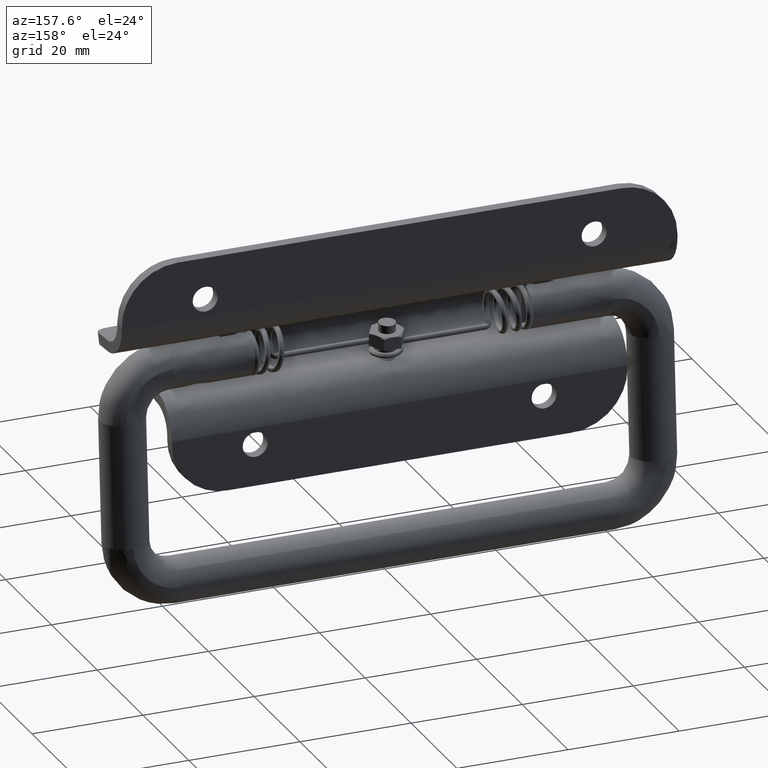
[diagram: clean part render]
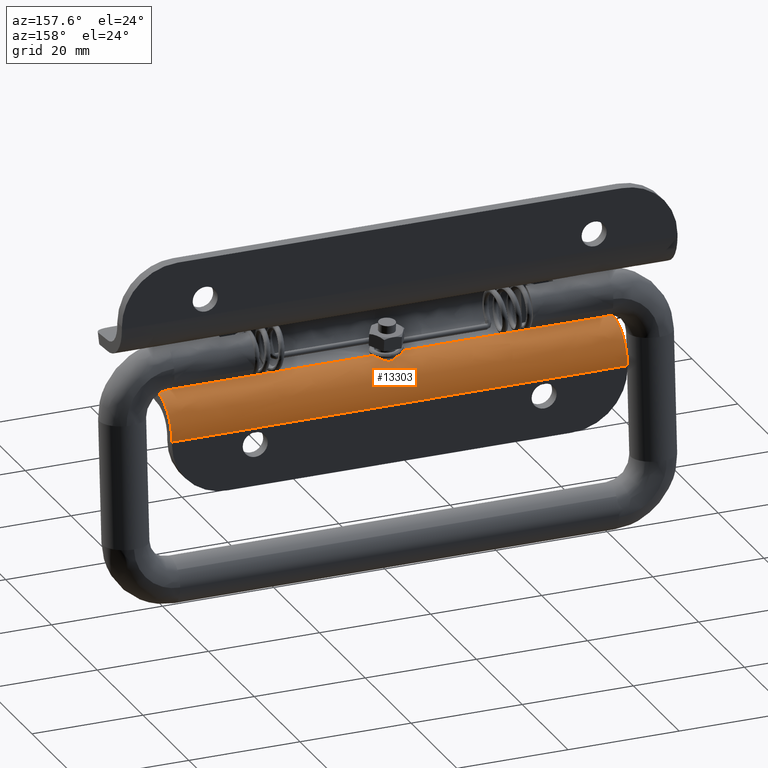
[diagram: same view with one face highlighted and labeled with its STEP entity id]
A machine part, auxiliary view. The second image highlights one B-rep face of the part: STEP entity #13303.
In plain terms, the highlighted face is a freeform B-spline surface patch.
Its self-contained STEP definition (entity closure, byte-faithful):
#10164=CARTESIAN_POINT('',(1.420745714925294,1.330434104165202,-4.637614826617690));
#10165=VERTEX_POINT('',#10164);
#10173=CARTESIAN_POINT('',(-1.420745714925612,1.330434104164650,-4.637614826617650));
#10174=VERTEX_POINT('',#10173);
#10175=CARTESIAN_POINT('',(1.420745714925294,1.330434104165202,-4.637614826617690));
#10176=CARTESIAN_POINT('',(1.357423318160945,1.470295152488968,-4.666861076799645));
#10177=CARTESIAN_POINT('',(1.279486514065444,1.599513922277910,-4.698675243545999));
#10178=CARTESIAN_POINT('',(1.163089380218020,1.747841606161606,-4.739329438918965));
#10179=CARTESIAN_POINT('',(1.138844076233839,1.776836142881588,-4.747502806719724));
#10180=CARTESIAN_POINT('',(1.088327465098013,1.833436477916878,-4.763865098310348));
#10181=CARTESIAN_POINT('',(1.061980024709291,1.861116525624986,-4.772076726003021));
#10182=CARTESIAN_POINT('',(0.980228620540108,1.941445622027528,-4.796458994114716));
#10183=CARTESIAN_POINT('',(0.922661697485727,1.990918537404412,-4.812228422483813));
#10184=CARTESIAN_POINT('',(0.801072431751863,2.081485448733300,-4.842103277513560));
#10185=CARTESIAN_POINT('',(0.737055328380651,2.122585508378266,-4.856212295066053));
#10186=CARTESIAN_POINT('',(0.635578921416320,2.177319635905830,-4.875487500705249));
#10187=CARTESIAN_POINT('',(0.600716210975981,2.194450114898603,-4.881612556081640));
#10188=CARTESIAN_POINT('',(0.530218725952565,2.225709498125014,-4.892914488020294));
#10189=CARTESIAN_POINT('',(0.494476196217415,2.239907459461018,-4.898115117843221));
#10190=CARTESIAN_POINT('',(0.385730965339058,2.278135704441322,-4.912238845000577));
#10191=CARTESIAN_POINT('',(0.311219649374894,2.297827957345705,-4.919688127456933));
#10192=CARTESIAN_POINT('',(0.196137905356056,2.317939727353940,-4.927339391371252));
#10193=CARTESIAN_POINT('',(0.157130185288793,2.323054921091768,-4.929297483396952));
#10194=CARTESIAN_POINT('',(0.079621593691194,2.329842869999513,-4.931899357079539));
#10195=CARTESIAN_POINT('',(0.040925758158924,2.331558817631467,-4.932559560670755));
#10196=CARTESIAN_POINT('',(-0.074989053834933,2.331754499356766,-4.932634758458903));
#10197=CARTESIAN_POINT('',(-0.152036044519610,2.325305470296841,-4.930144088103035));
#10198=CARTESIAN_POINT('',(-0.267259991503812,2.305662979488251,-4.922667747657441));
#10199=CARTESIAN_POINT('',(-0.305616547222275,2.297424409215556,-4.919543706359006));
#10200=CARTESIAN_POINT('',(-0.380700094838505,2.278000772959675,-4.912240138332249));
#10201=CARTESIAN_POINT('',(-0.417625747980163,2.266787572538918,-4.908049908896207));
#10202=CARTESIAN_POINT('',(-0.526648869570898,2.228846626475847,-4.894021785027992));
#10203=CARTESIAN_POINT('',(-0.597001267691119,2.197840455047286,-4.882729868007322));
#10204=CARTESIAN_POINT('',(-0.733314659902385,2.124872896919364,-4.857003035524947));
#10205=CARTESIAN_POINT('',(-0.797788396846000,2.083711604678941,-4.842855849424648));
#10206=CARTESIAN_POINT('',(-0.920058456867557,1.993067223981787,-4.812919817625804));
#10207=CARTESIAN_POINT('',(-0.977883648335791,1.943558651191188,-4.797120544957140));
#10208=CARTESIAN_POINT('',(-1.087284584930297,1.836436000361298,-4.764566047099056));
#10209=CARTESIAN_POINT('',(-1.137926084869399,1.779728557697194,-4.748090397084273));
#10210=CARTESIAN_POINT('',(-1.231592094696825,1.660720122535144,-4.715430317299387));
#10211=CARTESIAN_POINT('',(-1.274657393079865,1.598370308308734,-4.699229457899596));
#10212=CARTESIAN_POINT('',(-1.353507024046133,1.468034458195398,-4.667593514608042));
#10213=CARTESIAN_POINT('',(-1.389318686438819,1.399847414059090,-4.652129797379374));
#10214=CARTESIAN_POINT('',(-1.420745714925608,1.330434104164651,-4.637614826617644));
#10215=B_SPLINE_CURVE_WITH_KNOTS('',3,(#10175,#10176,#10177,#10178,#10179,#10180,#10181,#10182,#10183,#10184,#10185,#10186,#10187,#10188,#10189,#10190,#10191,#10192,#10193,#10194,#10195,#10196,#10197,#10198,#10199,#10200,#10201,#10202,#10203,#10204,#10205,#10206,#10207,#10208,#10209,#10210,#10211,#10212,#10213,#10214),.UNSPECIFIED.,.F.,.U.,(4,2,2,2,2,2,2,2,2,2,2,2,2,2,2,2,2,2,2,4),(0.0,0.125000000000000,0.156250000000000,0.187500000000000,0.250000000000000,0.312500000000000,0.343750000000000,0.375000000000000,0.437500000000000,0.468750000000000,0.500000000000000,0.562500000000000,0.593750000000000,0.624999999999999,0.687500000000000,0.750000000000000,0.812500000000000,0.875000000000000,0.937500000000000,1.0),.UNSPECIFIED.);
#10216=EDGE_CURVE('',#10165,#10174,#10215,.T.);
#11225=CARTESIAN_POINT('',(1.572983034745300,5.510729E-016,-4.500000000000000));
#11226=VERTEX_POINT('',#11225);
#11227=CARTESIAN_POINT('',(1.572983034745300,5.510729E-016,-4.500000000000000));
#11228=CARTESIAN_POINT('',(1.612214321975762,0.124149942506832,-4.500142593297740));
#11229=CARTESIAN_POINT('',(1.663966993536965,0.396027881739336,-4.508572855679778));
#11230=CARTESIAN_POINT('',(1.635604852894927,0.860407854348246,-4.550718798676324));
#11231=CARTESIAN_POINT('',(1.516124903947387,1.172097632217602,-4.602876580561230));
#11232=CARTESIAN_POINT('',(1.420745714925294,1.330434104165202,-4.637614826617690));
#11233=B_SPLINE_CURVE_WITH_KNOTS('',3,(#11227,#11228,#11229,#11230,#11231,#11232),.UNSPECIFIED.,.F.,.U.,(4,1,1,4),(0.000000064001457,0.390612700133036,0.824605766150765,1.388834373085458),.UNSPECIFIED.);
#11234=EDGE_CURVE('',#11226,#10165,#11233,.T.);
#11240=CARTESIAN_POINT('',(-1.572983034745300,0.0,-4.500000000000000));
#11241=VERTEX_POINT('',#11240);
#11242=CARTESIAN_POINT('',(-1.420745714925612,1.330434104164650,-4.637614826617650));
#11243=CARTESIAN_POINT('',(-1.530972951344070,1.147874571470796,-4.597111287256918));
#11244=CARTESIAN_POINT('',(-1.686275731852959,0.707319136682711,-4.526157523408628));
#11245=CARTESIAN_POINT('',(-1.647549455397511,0.234463629097913,-4.499713608114834));
#11246=CARTESIAN_POINT('',(-1.572983034745300,0.0,-4.500000000000000));
#11247=B_SPLINE_CURVE_WITH_KNOTS('',3,(#11242,#11243,#11244,#11245,#11246),.UNSPECIFIED.,.F.,.U.,(4,1,4),(0.000000064441743,0.651098881796783,1.388983379705949),.UNSPECIFIED.);
#11248=EDGE_CURVE('',#10174,#11241,#11247,.T.);
#12946=CARTESIAN_POINT('',(41.0,6.500000000000000,-11.0));
#12947=VERTEX_POINT('',#12946);
#12956=CARTESIAN_POINT('',(-41.0,6.500000000000000,-11.0));
#12957=VERTEX_POINT('',#12956);
#12963=CARTESIAN_POINT('',(41.0,6.500000000000000,-11.0));
#12964=CARTESIAN_POINT('',(-41.0,6.500000000000000,-11.0));
#12965=QUASI_UNIFORM_CURVE('',1,(#12963,#12964),.UNSPECIFIED.,.F.,.U.);
#12966=EDGE_CURVE('',#12947,#12957,#12965,.T.);
#13052=CARTESIAN_POINT('',(41.0,-8.266093E-016,-4.500000000000000));
#13053=VERTEX_POINT('',#13052);
#13107=CARTESIAN_POINT('',(41.0,6.500000000000000,-11.0));
#13108=CARTESIAN_POINT('',(41.000000000000057,6.500140473803228,-10.468203833945990));
#13109=CARTESIAN_POINT('',(40.999999999999922,6.401526324571717,-9.670617613074446));
#13110=CARTESIAN_POINT('',(41.000000000000099,6.039499576048395,-8.527812171923387));
#13111=CARTESIAN_POINT('',(40.999999999999787,5.588838931373948,-7.618714156558760));
#13112=CARTESIAN_POINT('',(41.000000000000249,4.816794663659342,-6.564059312789145));
#13113=CARTESIAN_POINT('',(40.999999999999872,3.718225318876336,-5.580462880625388));
#13114=CARTESIAN_POINT('',(41.000000000000121,2.405135469631702,-4.909480438699759));
#13115=CARTESIAN_POINT('',(40.999999999999837,1.143304127524190,-4.568758714846878));
#13116=CARTESIAN_POINT('',(41.000000000000057,0.398834444405126,-4.499957743140655));
#13117=CARTESIAN_POINT('',(41.0,-8.266093E-016,-4.500000000000000));
#13118=B_SPLINE_CURVE_WITH_KNOTS('',3,(#13107,#13108,#13109,#13110,#13111,#13112,#13113,#13114,#13115,#13116,#13117),.UNSPECIFIED.,.F.,.U.,(4,1,1,1,1,1,1,1,4),(0.000000114097420,1.595343042312244,2.393024521640228,3.589540646564299,4.626551357088743,6.301622792183951,7.976753252516490,9.013737571085221,10.210240188693470),.UNSPECIFIED.);
#13119=EDGE_CURVE('',#12947,#13053,#13118,.T.);
#13149=CARTESIAN_POINT('',(-41.0,-8.266093E-016,-4.500000000000000));
#13150=VERTEX_POINT('',#13149);
#13168=CARTESIAN_POINT('',(-41.0,6.500000000000000,-11.0));
#13169=CARTESIAN_POINT('',(-41.000000000000057,6.500140473803228,-10.468203833945990));
#13170=CARTESIAN_POINT('',(-40.999999999999922,6.401526324571717,-9.670617613074446));
#13171=CARTESIAN_POINT('',(-41.000000000000099,6.039499576048395,-8.527812171923387));
#13172=CARTESIAN_POINT('',(-40.999999999999787,5.588838931373948,-7.618714156558760));
#13173=CARTESIAN_POINT('',(-41.000000000000249,4.816794663659342,-6.564059312789145));
#13174=CARTESIAN_POINT('',(-40.999999999999872,3.718225318876336,-5.580462880625388));
#13175=CARTESIAN_POINT('',(-41.000000000000121,2.405135469631702,-4.909480438699759));
#13176=CARTESIAN_POINT('',(-40.999999999999837,1.143304127524190,-4.568758714846878));
#13177=CARTESIAN_POINT('',(-41.000000000000057,0.398834444405126,-4.499957743140655));
#13178=CARTESIAN_POINT('',(-41.0,-8.266093E-016,-4.500000000000000));
#13179=B_SPLINE_CURVE_WITH_KNOTS('',3,(#13168,#13169,#13170,#13171,#13172,#13173,#13174,#13175,#13176,#13177,#13178),.UNSPECIFIED.,.F.,.U.,(4,1,1,1,1,1,1,1,4),(0.000000114097420,1.595343042312244,2.393024521640228,3.589540646564299,4.626551357088743,6.301622792183951,7.976753252516490,9.013737571085221,10.210240188693470),.UNSPECIFIED.);
#13180=EDGE_CURVE('',#12957,#13150,#13179,.T.);
#13271=CARTESIAN_POINT('',(43.049999999999997,6.497772612341120,-11.170150164001180));
#13272=CARTESIAN_POINT('',(-43.101250000000000,6.497772612341120,-11.170150164001180));
#13273=CARTESIAN_POINT('',(43.050000000000011,6.685199691080703,-4.012598796394323));
#13274=CARTESIAN_POINT('',(-43.101250000000000,6.685199691080703,-4.012598796394323));
#13275=CARTESIAN_POINT('',(43.050000000000004,-0.457080491568898,-4.516090884024738));
#13276=CARTESIAN_POINT('',(-43.101250000000007,-0.457080491568898,-4.516090884024738));
#13284=(BOUNDED_SURFACE()B_SPLINE_SURFACE(1,2,((#13271,#13273,#13275),(#13272,#13274,#13276)),.UNSPECIFIED.,.F.,.F.,.U.)B_SPLINE_SURFACE_WITH_KNOTS((2,2),(3,3),(0.0,86.151250000000033),(0.0,11.512425236574369),.UNSPECIFIED.)GEOMETRIC_REPRESENTATION_ITEM()RATIONAL_B_SPLINE_SURFACE(((1.0,0.670944223154768,0.996392648609106),(1.0,0.670944223154768,0.996392648609106)))REPRESENTATION_ITEM('')SURFACE());
#13285=ORIENTED_EDGE('',*,*,#11234,.F.);
#13286=CARTESIAN_POINT('',(41.0,-8.266093E-016,-4.500000000000000));
#13287=CARTESIAN_POINT('',(1.572983034745300,5.510729E-016,-4.500000000000000));
#13288=QUASI_UNIFORM_CURVE('',1,(#13286,#13287),.UNSPECIFIED.,.F.,.U.);
#13289=EDGE_CURVE('',#13053,#11226,#13288,.T.);
#13290=ORIENTED_EDGE('',*,*,#13289,.F.);
#13291=ORIENTED_EDGE('',*,*,#13119,.F.);
#13292=ORIENTED_EDGE('',*,*,#12966,.T.);
#13293=ORIENTED_EDGE('',*,*,#13180,.T.);
#13294=CARTESIAN_POINT('',(-1.572983034745300,0.0,-4.500000000000000));
#13295=CARTESIAN_POINT('',(-41.0,-8.266093E-016,-4.500000000000000));
#13296=QUASI_UNIFORM_CURVE('',1,(#13294,#13295),.UNSPECIFIED.,.F.,.U.);
#13297=EDGE_CURVE('',#11241,#13150,#13296,.T.);
#13298=ORIENTED_EDGE('',*,*,#13297,.F.);
#13299=ORIENTED_EDGE('',*,*,#11248,.F.);
#13300=ORIENTED_EDGE('',*,*,#10216,.F.);
#13301=EDGE_LOOP('',(#13285,#13290,#13291,#13292,#13293,#13298,#13299,#13300));
#13302=FACE_OUTER_BOUND('',#13301,.T.);
#13303=ADVANCED_FACE('',(#13302),#13284,.T.);